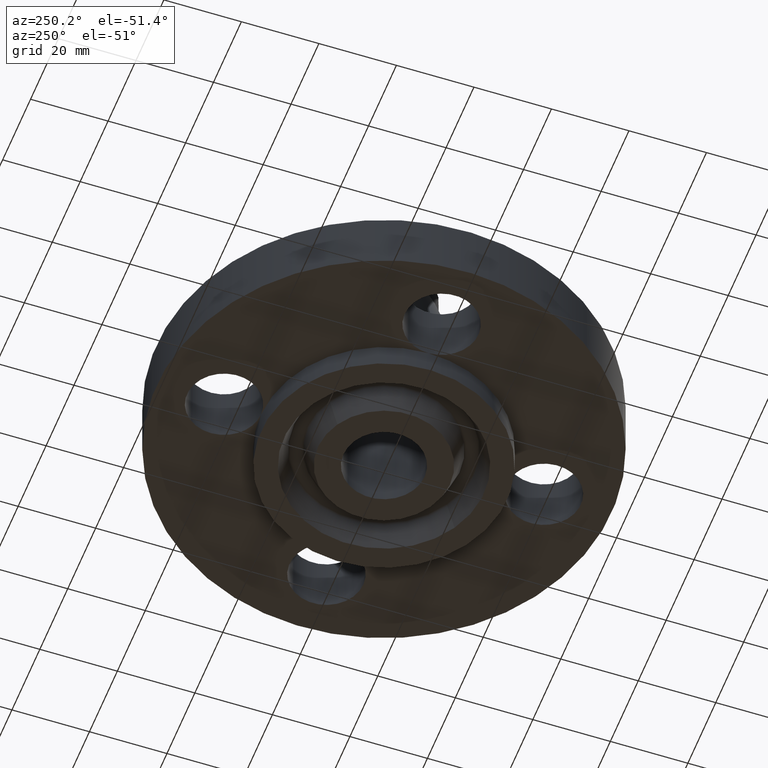
[diagram: clean part render]
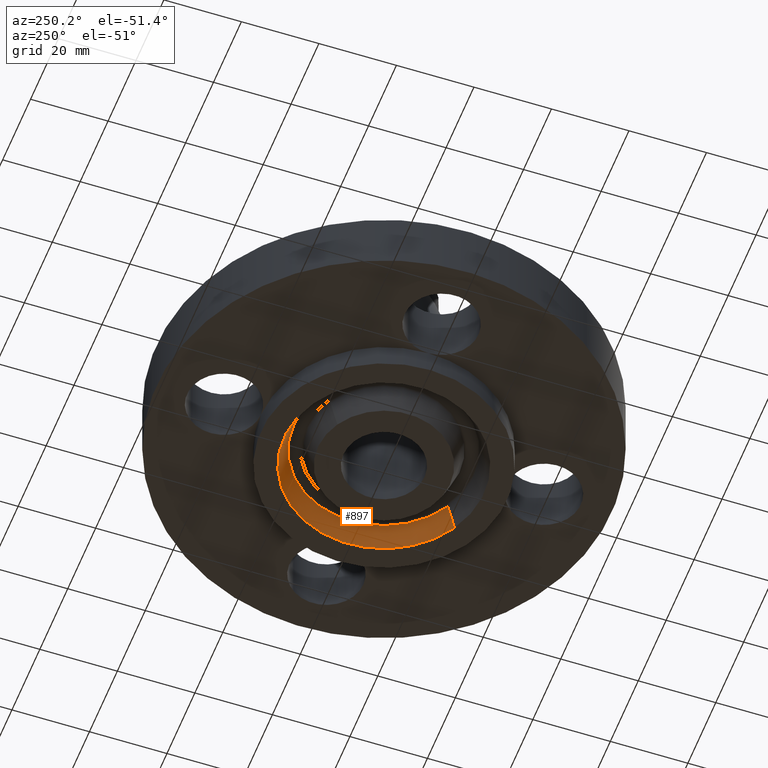
[diagram: same view with one face highlighted and labeled with its STEP entity id]
A machine part, auxiliary view. The second image highlights one B-rep face of the part: STEP entity #897.
In plain terms, the highlighted conical surface has half-angle 23 deg.
Its self-contained STEP definition (entity closure, byte-faithful):
#758=AXIS2_PLACEMENT_3D('Circle Axis2P3D',#756,#757,$) ;
#832=AXIS2_PLACEMENT_3D('Cone Axis2P3D',#829,#830,#831) ;
#853=AXIS2_PLACEMENT_3D('Circle Axis2P3D',#851,#852,$) ;
#751=CARTESIAN_POINT('Vertex',(0.487096347224,-0.891623882884,-0.250000000001)) ;
#753=CARTESIAN_POINT('Vertex',(-0.487096347224,0.891623882884,-0.250000000001)) ;
#756=CARTESIAN_POINT('Axis2P3D Location',(-3.49676543189E-017,6.99353086378E-017,-0.250000000001)) ;
#798=CARTESIAN_POINT('Vertex',(-0.440063979875,0.80553171193,-0.0188873350169)) ;
#800=CARTESIAN_POINT('Vertex',(0.440063979875,-0.80553171193,-0.0188873350169)) ;
#829=CARTESIAN_POINT('Axis2P3D Location',(0.,0.,-0.0188873350169)) ;
#834=CARTESIAN_POINT('Line Origine',(-0.46358016355,0.848577797407,-0.134443667509)) ;
#839=CARTESIAN_POINT('Line Origine',(0.46358016355,-0.848577797407,-0.134443667509)) ;
#851=CARTESIAN_POINT('Axis2P3D Location',(0.,0.,-0.0188873350169)) ;
#757=DIRECTION('Axis2P3D Direction',(0.,0.,-0.0393700787402)) ;
#830=DIRECTION('Axis2P3D Direction',(-0.,-0.,-0.0393700787402)) ;
#831=DIRECTION('Axis2P3D XDirection',(-0.0188750212049,0.0345504945626,0.)) ;
#835=DIRECTION('Vector Direction',(-0.00737505833565,0.0134999537303,-0.0362403485611)) ;
#840=DIRECTION('Vector Direction',(0.00737505833565,-0.0134999537303,-0.0362403485611)) ;
#852=DIRECTION('Axis2P3D Direction',(0.,0.,0.0393700787402)) ;
#836=VECTOR('Line Direction',#835,0.0393700787402) ;
#841=VECTOR('Line Direction',#840,0.0393700787402) ;
#892=ORIENTED_EDGE('',*,*,#760,.T.) ;
#893=ORIENTED_EDGE('',*,*,#843,.T.) ;
#894=ORIENTED_EDGE('',*,*,#855,.T.) ;
#895=ORIENTED_EDGE('',*,*,#838,.F.) ;
#897=ADVANCED_FACE('PartBody',(#896),#833,.F.) ;
#759=CIRCLE('generated circle',#758,1.016) ;
#854=CIRCLE('generated circle',#853,0.917898494011) ;
#833=CONICAL_SURFACE('Cone',#832,0.917898494011,0.401425727959) ;
#760=EDGE_CURVE('',#754,#752,#759,.T.) ;
#838=EDGE_CURVE('',#754,#799,#837,.F.) ;
#843=EDGE_CURVE('',#752,#801,#842,.F.) ;
#855=EDGE_CURVE('',#801,#799,#854,.T.) ;
#891=EDGE_LOOP('',(#892,#893,#894,#895)) ;
#896=FACE_OUTER_BOUND('',#891,.T.) ;
#837=LINE('Line',#834,#836) ;
#842=LINE('Line',#839,#841) ;
#752=VERTEX_POINT('',#751) ;
#754=VERTEX_POINT('',#753) ;
#799=VERTEX_POINT('',#798) ;
#801=VERTEX_POINT('',#800) ;